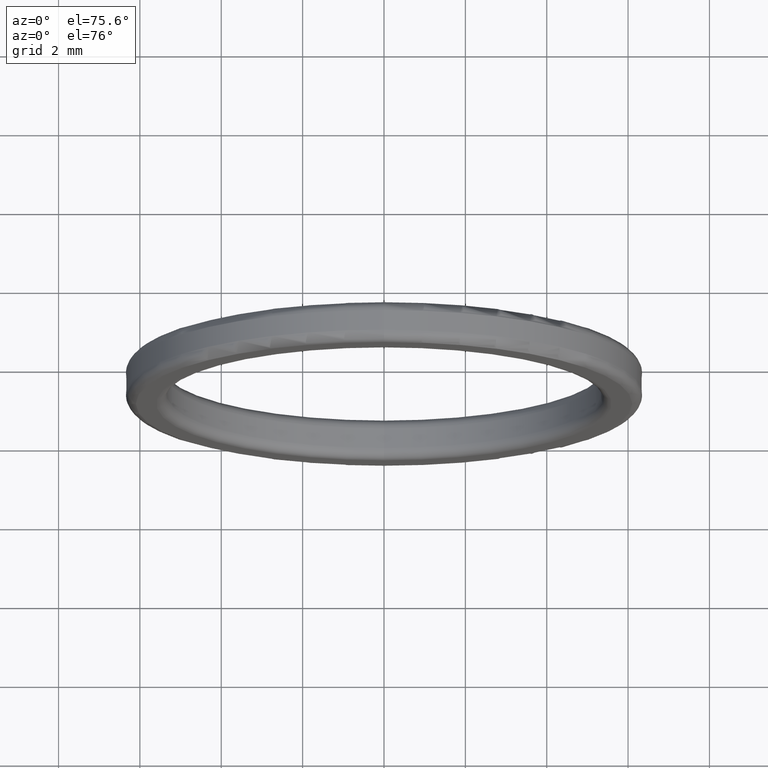
[diagram: clean part render]
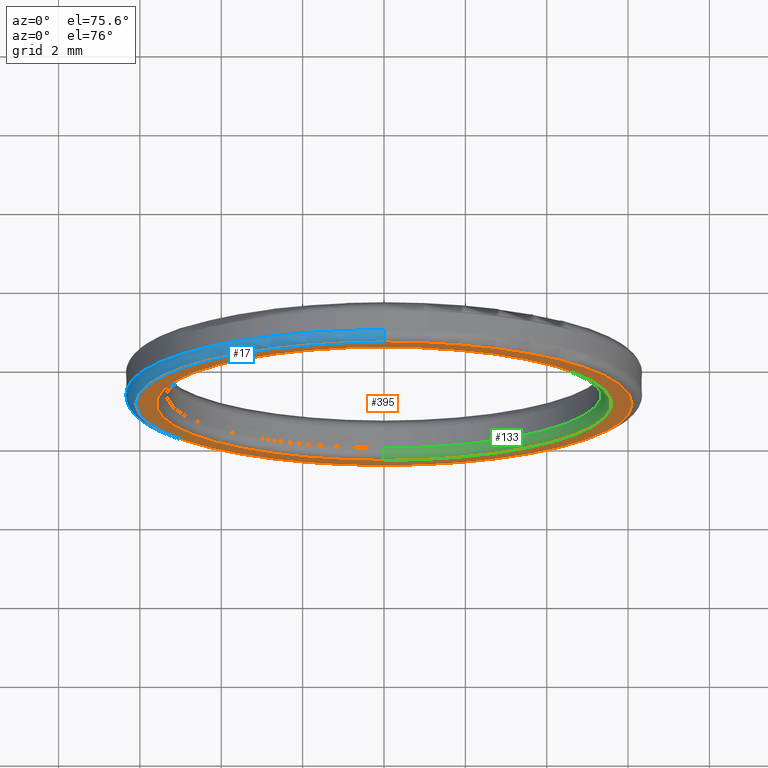
[diagram: same view with three faces highlighted in distinct colors, each labeled with its STEP entity id]
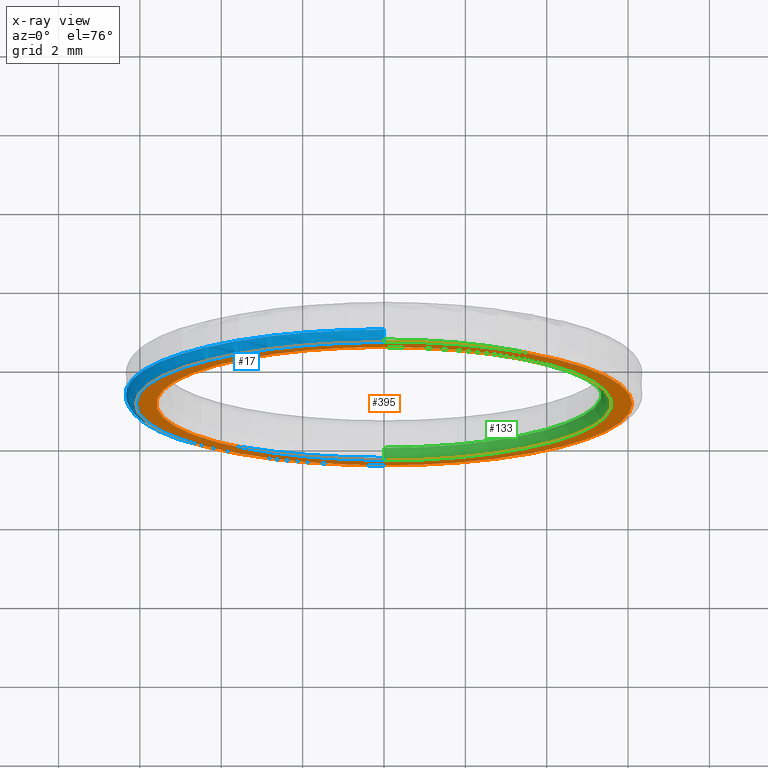
[diagram: x-ray of the same camera — body ghosted, the three highlighted faces saturated]
A machine part, auxiliary view with three faces highlighted in distinct colors.
The next image is the same camera in x-ray (body ghosted, the three faces saturated) — at least one of them is partly hidden behind the body in this view.
Their STEP definitions:

[orange] entity #395 — the highlighted planar face has unit normal (-0, 1, 0).
#1 = EDGE_CURVE ( 'NONE', #338, #386, #188, .T. ) ;
#5 = DIRECTION ( 'NONE',  ( 0.0000000000000000000, 0.0000000000000000000, 1.000000000000000000 ) ) ;
#6 = ORIENTED_EDGE ( 'NONE', *, *, #33, .T. ) ;
#24 = PLANE ( 'NONE',  #257 ) ;
#33 = EDGE_CURVE ( 'NONE', #215, #219, #94, .T. ) ;
#38 = EDGE_LOOP ( 'NONE', ( #397, #84 ) ) ;
#47 = DIRECTION ( 'NONE',  ( 0.0000000000000000000, -1.000000000000000000, 0.0000000000000000000 ) ) ;
#51 = CARTESIAN_POINT ( 'NONE',  ( 7.623426324692266325E-16, -0.5000000000000011102, -6.099999999999994316 ) ) ;
#58 = CIRCLE ( 'NONE', #187, 6.099999999999994316 ) ;
#59 = DIRECTION ( 'NONE',  ( 0.0000000000000000000, 0.0000000000000000000, 1.000000000000000000 ) ) ;
#78 = FACE_OUTER_BOUND ( 'NONE', #150, .T. ) ;
#84 = ORIENTED_EDGE ( 'NONE', *, *, #1, .T. ) ;
#90 = CARTESIAN_POINT ( 'NONE',  ( 0.0000000000000000000, -0.5000000000000011102, 6.099999999999994316 ) ) ;
#91 = AXIS2_PLACEMENT_3D ( 'NONE', #391, #47, #5 ) ;
#94 = CIRCLE ( 'NONE', #91, 6.099999999999994316 ) ;
#114 = AXIS2_PLACEMENT_3D ( 'NONE', #117, #453, #424 ) ;
#117 = CARTESIAN_POINT ( 'NONE',  ( 0.0000000000000000000, -0.5000000000000011102, 0.0000000000000000000 ) ) ;
#139 = DIRECTION ( 'NONE',  ( -0.0000000000000000000, 1.000000000000000000, -0.0000000000000000000 ) ) ;
#150 = EDGE_LOOP ( 'NONE', ( #6, #447 ) ) ;
#187 = AXIS2_PLACEMENT_3D ( 'NONE', #428, #294, #361 ) ;
#188 = CIRCLE ( 'NONE', #114, 5.599999999999994316 ) ;
#196 = CARTESIAN_POINT ( 'NONE',  ( 6.858022075225169677E-16, -0.5000000000000011102, -5.599999999999994316 ) ) ;
#197 = EDGE_CURVE ( 'NONE', #219, #215, #58, .T. ) ;
#215 = VERTEX_POINT ( 'NONE', #90 ) ;
#219 = VERTEX_POINT ( 'NONE', #51 ) ;
#257 = AXIS2_PLACEMENT_3D ( 'NONE', #265, #305, #267 ) ;
#265 = CARTESIAN_POINT ( 'NONE',  ( 5.349999999999993427, -0.5000000000000011102, 0.0000000000000000000 ) ) ;
#267 = DIRECTION ( 'NONE',  ( 0.0000000000000000000, 0.0000000000000000000, 1.000000000000000000 ) ) ;
#291 = EDGE_CURVE ( 'NONE', #386, #338, #307, .T. ) ;
#294 = DIRECTION ( 'NONE',  ( 0.0000000000000000000, -1.000000000000000000, 0.0000000000000000000 ) ) ;
#305 = DIRECTION ( 'NONE',  ( -0.0000000000000000000, 1.000000000000000000, 0.0000000000000000000 ) ) ;
#307 = CIRCLE ( 'NONE', #446, 5.599999999999994316 ) ;
#338 = VERTEX_POINT ( 'NONE', #196 ) ;
#361 = DIRECTION ( 'NONE',  ( 0.0000000000000000000, 0.0000000000000000000, 1.000000000000000000 ) ) ;
#363 = CARTESIAN_POINT ( 'NONE',  ( 0.0000000000000000000, -0.5000000000000011102, 5.599999999999994316 ) ) ;
#383 = FACE_BOUND ( 'NONE', #38, .T. ) ;
#386 = VERTEX_POINT ( 'NONE', #363 ) ;
#391 = CARTESIAN_POINT ( 'NONE',  ( 0.0000000000000000000, -0.5000000000000011102, 0.0000000000000000000 ) ) ;
#395 = ADVANCED_FACE ( 'NONE', ( #383, #78 ), #24, .F. ) ;
#397 = ORIENTED_EDGE ( 'NONE', *, *, #291, .T. ) ;
#424 = DIRECTION ( 'NONE',  ( 0.0000000000000000000, 0.0000000000000000000, 1.000000000000000000 ) ) ;
#428 = CARTESIAN_POINT ( 'NONE',  ( 0.0000000000000000000, -0.5000000000000011102, 0.0000000000000000000 ) ) ;
#439 = CARTESIAN_POINT ( 'NONE',  ( 0.0000000000000000000, -0.5000000000000011102, 0.0000000000000000000 ) ) ;
#446 = AXIS2_PLACEMENT_3D ( 'NONE', #439, #139, #59 ) ;
#447 = ORIENTED_EDGE ( 'NONE', *, *, #197, .T. ) ;
#453 = DIRECTION ( 'NONE',  ( -0.0000000000000000000, 1.000000000000000000, -0.0000000000000000000 ) ) ;

[blue] entity #17 — the highlighted toroidal blend (fillet) surface has major radius 6.1 mm and minor (blend) radius 0.25 mm.
#3 = CARTESIAN_POINT ( 'NONE',  ( 0.0000000000000000000, -0.2500000000000011102, 6.099999999999994316 ) ) ;
#5 = DIRECTION ( 'NONE',  ( 0.0000000000000000000, 0.0000000000000000000, 1.000000000000000000 ) ) ;
#17 = ADVANCED_FACE ( 'NONE', ( #360 ), #366, .T. ) ;
#33 = EDGE_CURVE ( 'NONE', #215, #219, #94, .T. ) ;
#42 = CARTESIAN_POINT ( 'NONE',  ( 0.0000000000000000000, -0.2500000000000011102, 0.0000000000000000000 ) ) ;
#47 = DIRECTION ( 'NONE',  ( 0.0000000000000000000, -1.000000000000000000, 0.0000000000000000000 ) ) ;
#49 = EDGE_CURVE ( 'NONE', #215, #135, #118, .T. ) ;
#51 = CARTESIAN_POINT ( 'NONE',  ( 7.623426324692266325E-16, -0.5000000000000011102, -6.099999999999994316 ) ) ;
#66 = DIRECTION ( 'NONE',  ( 1.000000000000000000, 0.0000000000000000000, 1.224646799147353207E-16 ) ) ;
#90 = CARTESIAN_POINT ( 'NONE',  ( 0.0000000000000000000, -0.5000000000000011102, 6.099999999999994316 ) ) ;
#91 = AXIS2_PLACEMENT_3D ( 'NONE', #391, #47, #5 ) ;
#94 = CIRCLE ( 'NONE', #91, 6.099999999999994316 ) ;
#111 = ORIENTED_EDGE ( 'NONE', *, *, #33, .F. ) ;
#118 = CIRCLE ( 'NONE', #159, 0.2500000000000002220 ) ;
#121 = DIRECTION ( 'NONE',  ( -0.0000000000000000000, 1.000000000000000000, -0.0000000000000000000 ) ) ;
#123 = EDGE_CURVE ( 'NONE', #345, #135, #254, .T. ) ;
#134 = CARTESIAN_POINT ( 'NONE',  ( 7.470345474798847390E-16, -0.2500000000000011102, -6.099999999999994316 ) ) ;
#135 = VERTEX_POINT ( 'NONE', #320 ) ;
#155 = DIRECTION ( 'NONE',  ( 0.0000000000000000000, 0.0000000000000000000, 1.000000000000000000 ) ) ;
#159 = AXIS2_PLACEMENT_3D ( 'NONE', #3, #319, #189 ) ;
#189 = DIRECTION ( 'NONE',  ( 0.0000000000000000000, 0.0000000000000000000, 1.000000000000000000 ) ) ;
#213 = ORIENTED_EDGE ( 'NONE', *, *, #412, .F. ) ;
#215 = VERTEX_POINT ( 'NONE', #90 ) ;
#218 = DIRECTION ( 'NONE',  ( -0.0000000000000000000, 1.000000000000000000, -0.0000000000000000000 ) ) ;
#219 = VERTEX_POINT ( 'NONE', #51 ) ;
#237 = AXIS2_PLACEMENT_3D ( 'NONE', #134, #66, #343 ) ;
#254 = CIRCLE ( 'NONE', #306, 6.349999999999994316 ) ;
#303 = ORIENTED_EDGE ( 'NONE', *, *, #123, .F. ) ;
#306 = AXIS2_PLACEMENT_3D ( 'NONE', #321, #121, #354 ) ;
#309 = CARTESIAN_POINT ( 'NONE',  ( 7.776507174585686247E-16, -0.2500000000000011102, -6.349999999999994316 ) ) ;
#310 = EDGE_LOOP ( 'NONE', ( #213, #111, #362, #303 ) ) ;
#319 = DIRECTION ( 'NONE',  ( -1.000000000000000000, 0.0000000000000000000, 0.0000000000000000000 ) ) ;
#320 = CARTESIAN_POINT ( 'NONE',  ( 0.0000000000000000000, -0.2500000000000011102, 6.349999999999994316 ) ) ;
#321 = CARTESIAN_POINT ( 'NONE',  ( 0.0000000000000000000, -0.2500000000000011102, 0.0000000000000000000 ) ) ;
#343 = DIRECTION ( 'NONE',  ( 1.224646799147353454E-16, 0.0000000000000000000, -1.000000000000000000 ) ) ;
#345 = VERTEX_POINT ( 'NONE', #309 ) ;
#348 = AXIS2_PLACEMENT_3D ( 'NONE', #42, #218, #155 ) ;
#354 = DIRECTION ( 'NONE',  ( 0.0000000000000000000, 0.0000000000000000000, 1.000000000000000000 ) ) ;
#360 = FACE_OUTER_BOUND ( 'NONE', #310, .T. ) ;
#362 = ORIENTED_EDGE ( 'NONE', *, *, #49, .T. ) ;
#366 = TOROIDAL_SURFACE ( 'NONE', #348, 6.099999999999994316, 0.2500000000000000000 ) ;
#391 = CARTESIAN_POINT ( 'NONE',  ( 0.0000000000000000000, -0.5000000000000011102, 0.0000000000000000000 ) ) ;
#412 = EDGE_CURVE ( 'NONE', #219, #345, #417, .T. ) ;
#417 = CIRCLE ( 'NONE', #237, 0.2500000000000002220 ) ;

[green] entity #133 — the highlighted toroidal blend (fillet) surface has major radius 5.6 mm and minor (blend) radius 0.25 mm.
#39 = AXIS2_PLACEMENT_3D ( 'NONE', #430, #195, #433 ) ;
#45 = DIRECTION ( 'NONE',  ( -1.000000000000000000, 0.0000000000000000000, 0.0000000000000000000 ) ) ;
#53 = AXIS2_PLACEMENT_3D ( 'NONE', #186, #45, #77 ) ;
#59 = DIRECTION ( 'NONE',  ( 0.0000000000000000000, 0.0000000000000000000, 1.000000000000000000 ) ) ;
#69 = EDGE_CURVE ( 'NONE', #413, #386, #422, .T. ) ;
#71 = AXIS2_PLACEMENT_3D ( 'NONE', #79, #353, #289 ) ;
#77 = DIRECTION ( 'NONE',  ( 0.0000000000000000000, 0.0000000000000000000, 1.000000000000000000 ) ) ;
#79 = CARTESIAN_POINT ( 'NONE',  ( 0.0000000000000000000, -0.2500000000000011102, 0.0000000000000000000 ) ) ;
#87 = EDGE_CURVE ( 'NONE', #231, #413, #299, .T. ) ;
#102 = EDGE_LOOP ( 'NONE', ( #420, #263, #113, #288 ) ) ;
#113 = ORIENTED_EDGE ( 'NONE', *, *, #291, .F. ) ;
#133 = ADVANCED_FACE ( 'NONE', ( #286 ), #183, .T. ) ;
#139 = DIRECTION ( 'NONE',  ( -0.0000000000000000000, 1.000000000000000000, -0.0000000000000000000 ) ) ;
#156 = CARTESIAN_POINT ( 'NONE',  ( 0.0000000000000000000, -0.2500000000000011102, 0.0000000000000000000 ) ) ;
#183 = TOROIDAL_SURFACE ( 'NONE', #432, 5.599999999999994316, 0.2500000000000000000 ) ;
#186 = CARTESIAN_POINT ( 'NONE',  ( 0.0000000000000000000, -0.2500000000000011102, 5.599999999999994316 ) ) ;
#190 = CARTESIAN_POINT ( 'NONE',  ( 6.551860375438331807E-16, -0.2500000000000011102, -5.349999999999993427 ) ) ;
#195 = DIRECTION ( 'NONE',  ( 1.000000000000000000, 0.0000000000000000000, 1.224646799147353207E-16 ) ) ;
#196 = CARTESIAN_POINT ( 'NONE',  ( 6.858022075225169677E-16, -0.5000000000000011102, -5.599999999999994316 ) ) ;
#225 = DIRECTION ( 'NONE',  ( 0.0000000000000000000, 0.0000000000000000000, 1.000000000000000000 ) ) ;
#231 = VERTEX_POINT ( 'NONE', #190 ) ;
#241 = CARTESIAN_POINT ( 'NONE',  ( 0.0000000000000000000, -0.2500000000000011102, 5.349999999999993427 ) ) ;
#251 = EDGE_CURVE ( 'NONE', #231, #338, #389, .T. ) ;
#256 = DIRECTION ( 'NONE',  ( -0.0000000000000000000, 1.000000000000000000, -0.0000000000000000000 ) ) ;
#263 = ORIENTED_EDGE ( 'NONE', *, *, #251, .T. ) ;
#286 = FACE_OUTER_BOUND ( 'NONE', #102, .T. ) ;
#288 = ORIENTED_EDGE ( 'NONE', *, *, #69, .F. ) ;
#289 = DIRECTION ( 'NONE',  ( 0.0000000000000000000, 0.0000000000000000000, 1.000000000000000000 ) ) ;
#291 = EDGE_CURVE ( 'NONE', #386, #338, #307, .T. ) ;
#299 = CIRCLE ( 'NONE', #71, 5.349999999999993427 ) ;
#307 = CIRCLE ( 'NONE', #446, 5.599999999999994316 ) ;
#338 = VERTEX_POINT ( 'NONE', #196 ) ;
#353 = DIRECTION ( 'NONE',  ( 0.0000000000000000000, -1.000000000000000000, 0.0000000000000000000 ) ) ;
#363 = CARTESIAN_POINT ( 'NONE',  ( 0.0000000000000000000, -0.5000000000000011102, 5.599999999999994316 ) ) ;
#386 = VERTEX_POINT ( 'NONE', #363 ) ;
#389 = CIRCLE ( 'NONE', #39, 0.2500000000000002220 ) ;
#413 = VERTEX_POINT ( 'NONE', #241 ) ;
#420 = ORIENTED_EDGE ( 'NONE', *, *, #87, .F. ) ;
#422 = CIRCLE ( 'NONE', #53, 0.2500000000000002220 ) ;
#430 = CARTESIAN_POINT ( 'NONE',  ( 6.858022075225169677E-16, -0.2500000000000011102, -5.599999999999994316 ) ) ;
#432 = AXIS2_PLACEMENT_3D ( 'NONE', #156, #256, #225 ) ;
#433 = DIRECTION ( 'NONE',  ( 1.224646799147353454E-16, 0.0000000000000000000, -1.000000000000000000 ) ) ;
#439 = CARTESIAN_POINT ( 'NONE',  ( 0.0000000000000000000, -0.5000000000000011102, 0.0000000000000000000 ) ) ;
#446 = AXIS2_PLACEMENT_3D ( 'NONE', #439, #139, #59 ) ;